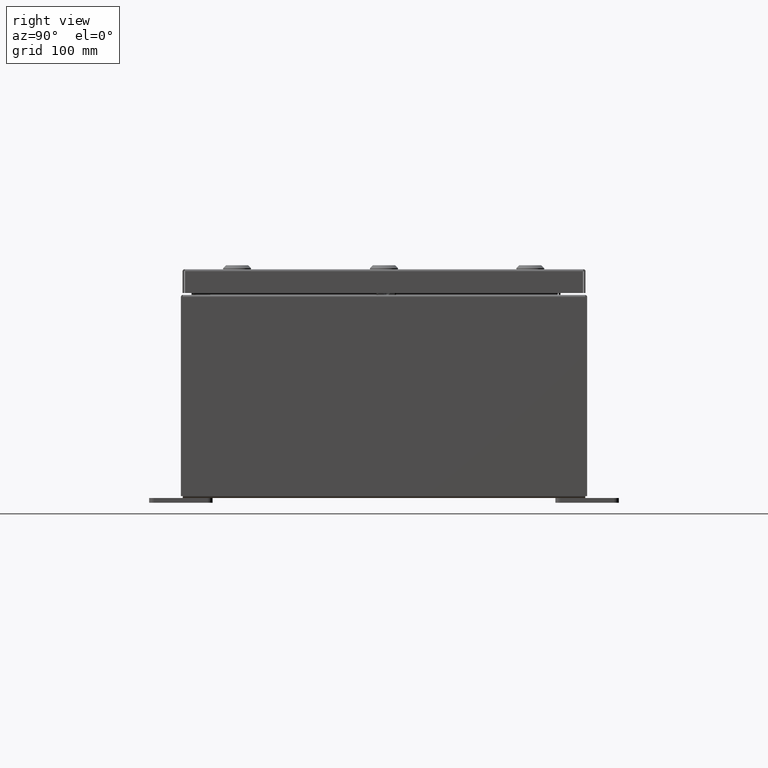
[diagram: clean part render]
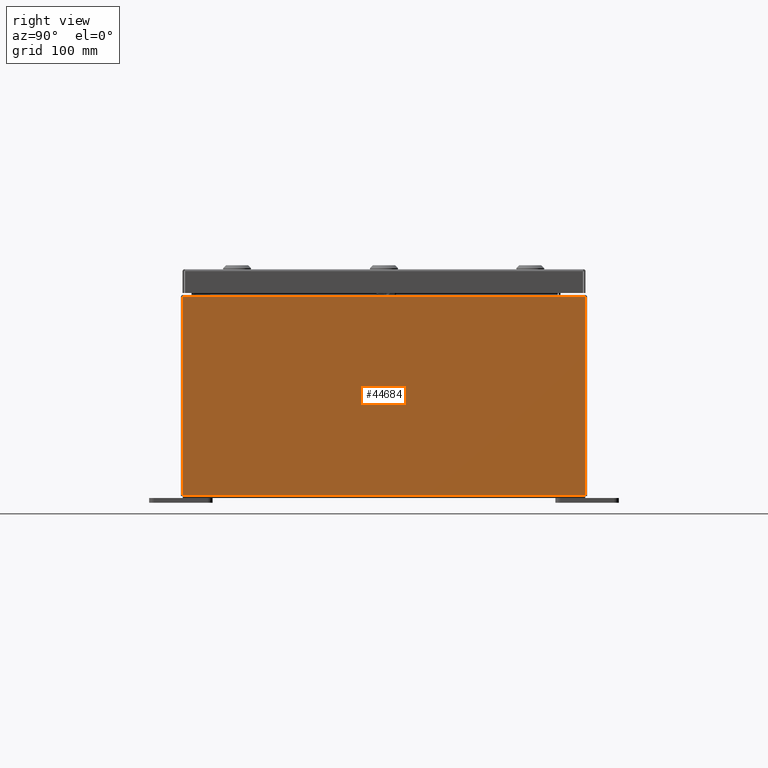
[diagram: same view with one face highlighted and labeled with its STEP entity id]
A machine part, right view. The second image highlights one B-rep face of the part: STEP entity #44684.
In plain terms, the highlighted planar face has unit normal (-1, 0, 0).
Its self-contained STEP definition (entity closure, byte-faithful):
#1401 = DIRECTION ( 'NONE',  ( 3.584876173029202900E-015, 0.0000000000000000000, 1.000000000000000000 ) ) ;
#1785 = VERTEX_POINT ( 'NONE', #54547 ) ;
#6264 = CARTESIAN_POINT ( 'NONE',  ( 10.00000000000000000, 7.925300000000000000, 0.01299999999999984700 ) ) ;
#6562 = ORIENTED_EDGE ( 'NONE', *, *, #7678, .F. ) ;
#6617 = ORIENTED_EDGE ( 'NONE', *, *, #60574, .T. ) ;
#7678 = EDGE_CURVE ( 'NONE', #33614, #1785, #54322, .T. ) ;
#9865 = DIRECTION ( 'NONE',  ( -0.0000000000000000000, -1.000000000000000000, -0.0000000000000000000 ) ) ;
#11887 = VERTEX_POINT ( 'NONE', #15867 ) ;
#15867 = CARTESIAN_POINT ( 'NONE',  ( 10.00000000000002800, -7.925300000000000900, 7.837599999999999200 ) ) ;
#16332 = EDGE_CURVE ( 'NONE', #40231, #11887, #39788, .T. ) ;
#19285 = CARTESIAN_POINT ( 'NONE',  ( 10.00000000000003000, 7.925300000000000900, 7.837599999999993000 ) ) ;
#21512 = ORIENTED_EDGE ( 'NONE', *, *, #16332, .T. ) ;
#21723 = AXIS2_PLACEMENT_3D ( 'NONE', #43562, #58209, #29093 ) ;
#22783 = CARTESIAN_POINT ( 'NONE',  ( 10.00000000000003000, 7.925300000000000900, 7.837599999999993000 ) ) ;
#24876 = DIRECTION ( 'NONE',  ( -3.584876173029202900E-015, 0.0000000000000000000, -1.000000000000000000 ) ) ;
#25268 = FACE_OUTER_BOUND ( 'NONE', #52126, .T. ) ;
#27658 = DIRECTION ( 'NONE',  ( -0.0000000000000000000, -1.000000000000000000, -0.0000000000000000000 ) ) ;
#29093 = DIRECTION ( 'NONE',  ( 3.584876173029202900E-015, 0.0000000000000000000, 1.000000000000000000 ) ) ;
#30535 = CARTESIAN_POINT ( 'NONE',  ( 10.00000000000000000, 7.925300000000000000, -3.610957538630361200E-014 ) ) ;
#31476 = VECTOR ( 'NONE', #1401, 39.37007874015748100 ) ;
#31524 = VECTOR ( 'NONE', #9865, 39.37007874015748100 ) ;
#31683 = EDGE_CURVE ( 'NONE', #11887, #1785, #51507, .T. ) ;
#33614 = VERTEX_POINT ( 'NONE', #6264 ) ;
#35366 = ORIENTED_EDGE ( 'NONE', *, *, #31683, .T. ) ;
#38962 = CARTESIAN_POINT ( 'NONE',  ( 10.00000000000000000, -7.925300000000000000, 0.01299999999999984700 ) ) ;
#39788 = LINE ( 'NONE', #22783, #59530 ) ;
#40231 = VERTEX_POINT ( 'NONE', #19285 ) ;
#43562 = CARTESIAN_POINT ( 'NONE',  ( 10.00000000000000000, 0.0000000000000000000, -3.610957538630361200E-014 ) ) ;
#44409 = CARTESIAN_POINT ( 'NONE',  ( 10.00000000000000000, -7.925300000000000000, -3.610957538630361200E-014 ) ) ;
#44684 = ADVANCED_FACE ( 'NONE', ( #25268 ), #58006, .F. ) ;
#49940 = VECTOR ( 'NONE', #24876, 39.37007874015748100 ) ;
#51507 = LINE ( 'NONE', #44409, #49940 ) ;
#52126 = EDGE_LOOP ( 'NONE', ( #21512, #35366, #6562, #6617 ) ) ;
#54322 = LINE ( 'NONE', #38962, #31524 ) ;
#54547 = CARTESIAN_POINT ( 'NONE',  ( 10.00000000000000000, -7.925300000000000000, 0.01299999999999983600 ) ) ;
#58006 = PLANE ( 'NONE',  #21723 ) ;
#58209 = DIRECTION ( 'NONE',  ( -1.000000000000000000, 0.0000000000000000000, 3.584876173029202900E-015 ) ) ;
#59530 = VECTOR ( 'NONE', #27658, 39.37007874015748100 ) ;
#60350 = LINE ( 'NONE', #30535, #31476 ) ;
#60574 = EDGE_CURVE ( 'NONE', #33614, #40231, #60350, .T. ) ;